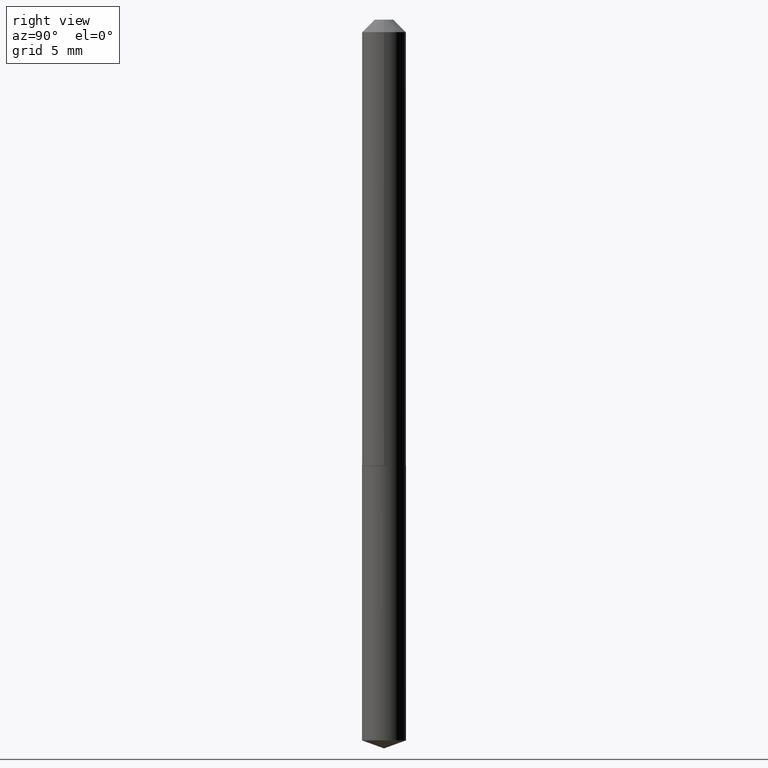
[diagram: clean part render]
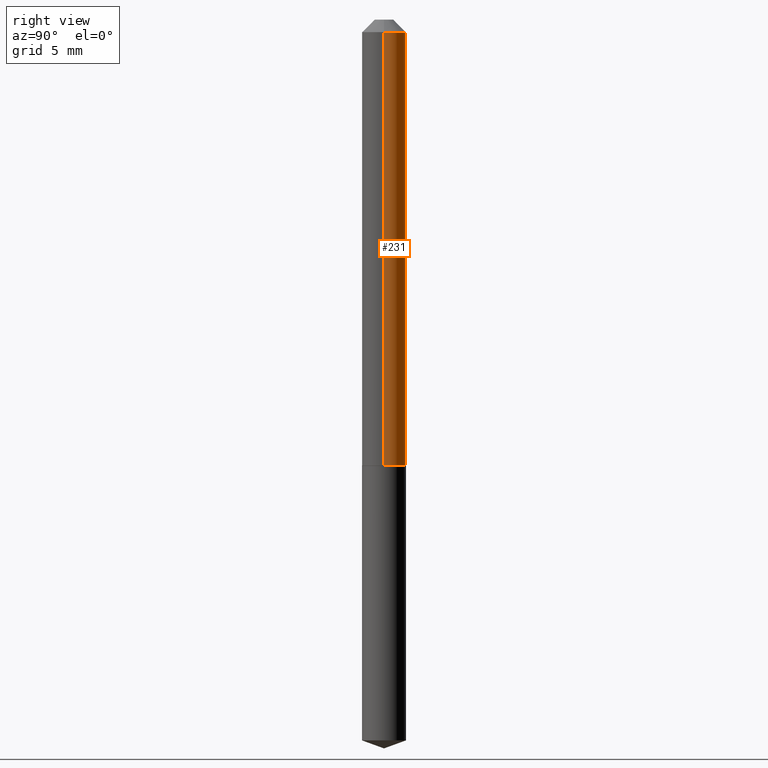
[diagram: same view with one face highlighted and labeled with its STEP entity id]
A machine part, right view. The second image highlights one B-rep face of the part: STEP entity #231.
In plain terms, the highlighted cylindrical surface (edge-blend (fillet) strip) has radius 1.3894 mm, axis along (-0, 0, 1).
Its self-contained STEP definition (entity closure, byte-faithful):
#6 = DIRECTION ( 'NONE',  ( -2.445468806185136597E-29, 3.491481338843145583E-15, 1.000000000000000000 ) ) ;
#14 = DIRECTION ( 'NONE',  ( -2.445468806185136597E-29, 3.491481338843145583E-15, 1.000000000000000000 ) ) ;
#31 = VERTEX_POINT ( 'NONE', #329 ) ;
#36 = CARTESIAN_POINT ( 'NONE',  ( 2.711780359178698087E-29, -3.871703656643164443E-15, -1.108899999999999997 ) ) ;
#42 = ORIENTED_EDGE ( 'NONE', *, *, #89, .F. ) ;
#50 = VECTOR ( 'NONE', #248, 39.37007874015748143 ) ;
#59 = EDGE_CURVE ( 'NONE', #171, #214, #243, .T. ) ;
#69 = ORIENTED_EDGE ( 'NONE', *, *, #263, .F. ) ;
#72 = CARTESIAN_POINT ( 'NONE',  ( -0.05470000000000000556, -1.601739347780230402E-15, -0.03125000000000020817 ) ) ;
#73 = ORIENTED_EDGE ( 'NONE', *, *, #59, .T. ) ;
#82 = DIRECTION ( 'NONE',  ( -2.445468806185136877E-29, 3.491481338843145188E-15, 1.000000000000000000 ) ) ;
#89 = EDGE_CURVE ( 'NONE', #31, #142, #275, .T. ) ;
#103 = CARTESIAN_POINT ( 'NONE',  ( 0.05470000000000000556, -4.910768503082878866E-16, -0.03125000000000020817 ) ) ;
#142 = VERTEX_POINT ( 'NONE', #103 ) ;
#145 = AXIS2_PLACEMENT_3D ( 'NONE', #272, #6, #244 ) ;
#146 = ORIENTED_EDGE ( 'NONE', *, *, #199, .T. ) ;
#152 = CYLINDRICAL_SURFACE ( 'NONE', #145, 0.05470000000000006801 ) ;
#155 = DIRECTION ( 'NONE',  ( 1.000000000000000000, -6.982962677686269866E-15, 0.000000000000000000 ) ) ;
#171 = VERTEX_POINT ( 'NONE', #305 ) ;
#196 = CARTESIAN_POINT ( 'NONE',  ( 7.642090019328602662E-31, -1.091087918388490267E-16, -0.03125000000000020817 ) ) ;
#199 = EDGE_CURVE ( 'NONE', #31, #171, #316, .T. ) ;
#214 = VERTEX_POINT ( 'NONE', #72 ) ;
#228 = AXIS2_PLACEMENT_3D ( 'NONE', #196, #232, #286 ) ;
#231 = ADVANCED_FACE ( 'NONE', ( #314 ), #152, .T. ) ;
#232 = DIRECTION ( 'NONE',  ( -2.445468806185136597E-29, 3.491481338843145583E-15, 1.000000000000000000 ) ) ;
#240 = VECTOR ( 'NONE', #82, 39.37007874015748143 ) ;
#243 = LINE ( 'NONE', #299, #240 ) ;
#244 = DIRECTION ( 'NONE',  ( 1.000000000000000000, -6.982962677686266711E-15, 4.876176775795936353E-29 ) ) ;
#248 = DIRECTION ( 'NONE',  ( -2.445468806185136877E-29, 3.491481338843145188E-15, 1.000000000000000000 ) ) ;
#263 = EDGE_CURVE ( 'NONE', #142, #214, #364, .T. ) ;
#272 = CARTESIAN_POINT ( 'NONE',  ( 0.000000000000000000, 0.000000000000000000, 0.000000000000000000 ) ) ;
#275 = LINE ( 'NONE', #337, #50 ) ;
#285 = AXIS2_PLACEMENT_3D ( 'NONE', #36, #14, #155 ) ;
#286 = DIRECTION ( 'NONE',  ( 1.000000000000000000, -6.982962677686266711E-15, 0.000000000000000000 ) ) ;
#299 = CARTESIAN_POINT ( 'NONE',  ( -0.05470000000000006801, 3.886668764607752849E-16, -2.690657494369436511E-30 ) ) ;
#305 = CARTESIAN_POINT ( 'NONE',  ( -0.05470000000000013046, -3.483036780182388665E-15, -1.108899999999999997 ) ) ;
#312 = EDGE_LOOP ( 'NONE', ( #146, #73, #69, #42 ) ) ;
#314 = FACE_OUTER_BOUND ( 'NONE', #312, .T. ) ;
#316 = CIRCLE ( 'NONE', #285, 0.05470000000000013046 ) ;
#329 = CARTESIAN_POINT ( 'NONE',  ( 0.05470000000000013046, -4.253671715112603623E-15, -1.108899999999999997 ) ) ;
#337 = CARTESIAN_POINT ( 'NONE',  ( 0.05470000000000006801, -3.819680584694392790E-16, 2.667268696360380458E-30 ) ) ;
#364 = CIRCLE ( 'NONE', #228, 0.05470000000000000556 ) ;